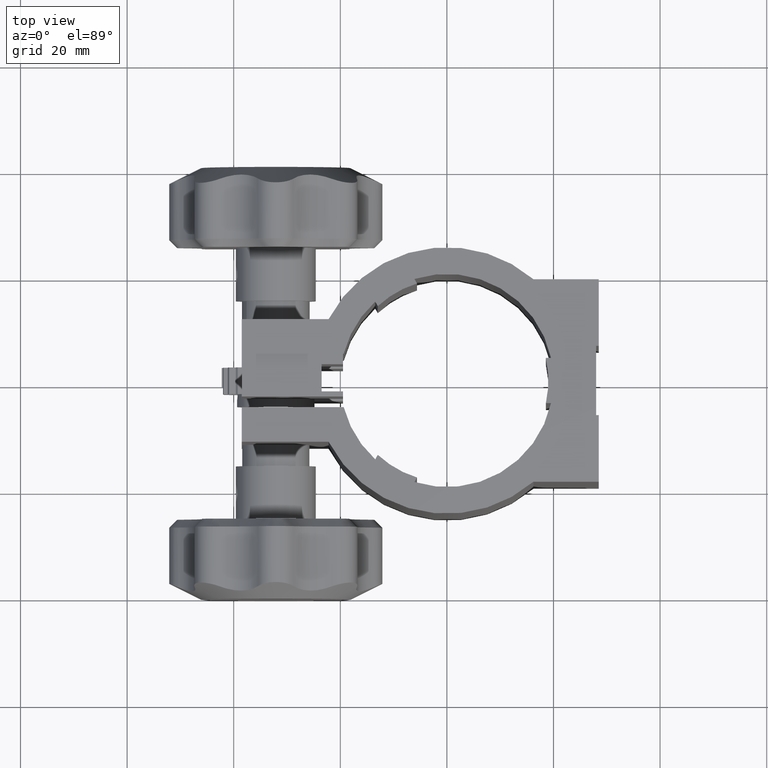
[diagram: clean part render]
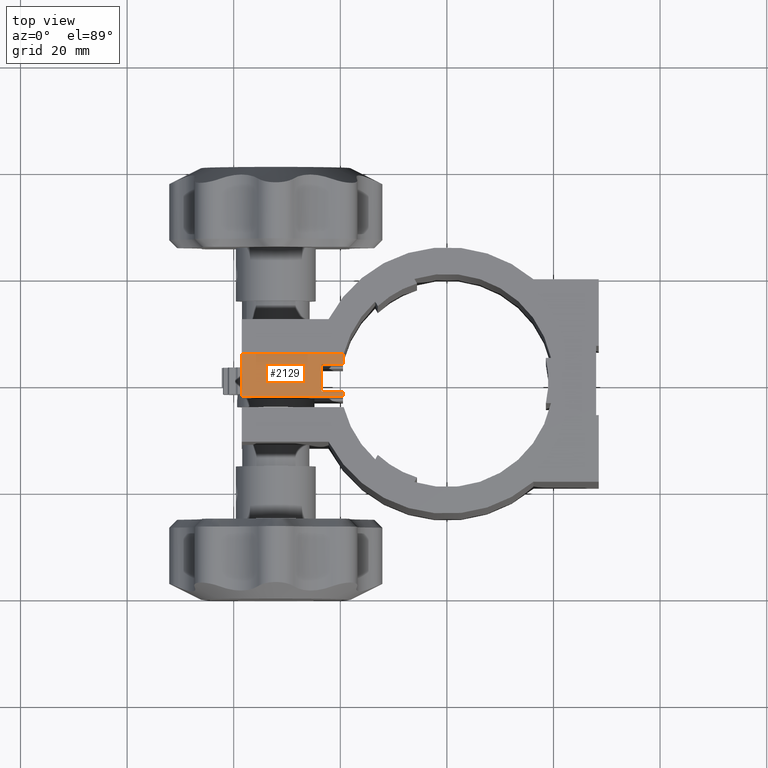
[diagram: same view with one face highlighted and labeled with its STEP entity id]
A machine part, top view. The second image highlights one B-rep face of the part: STEP entity #2129.
In plain terms, the highlighted planar face has unit normal (0, 0, -1).
Its self-contained STEP definition (entity closure, byte-faithful):
#65 = CARTESIAN_POINT ( 'NONE',  ( -19.50000000000001800, 3.049999999999992300, 75.50000000000002800 ) ) ;
#177 = LINE ( 'NONE', #1028, #6519 ) ;
#188 = LINE ( 'NONE', #65, #13181 ) ;
#297 = VERTEX_POINT ( 'NONE', #536 ) ;
#424 = DIRECTION ( 'NONE',  ( 1.000000000000000000, 3.163997855400548500E-017, 6.106226635438360000E-016 ) ) ;
#536 = CARTESIAN_POINT ( 'NONE',  ( -23.50000000000002100, 3.049999999999991800, 75.50000000000002800 ) ) ;
#664 = CARTESIAN_POINT ( 'NONE',  ( -19.50000000000000400, 5.000000000000000000, 75.50000000000002800 ) ) ;
#970 = CARTESIAN_POINT ( 'NONE',  ( -23.50000000000002100, -2.050000000000000700, 75.50000000000002800 ) ) ;
#1028 = CARTESIAN_POINT ( 'NONE',  ( -19.50000000000001800, -2.050000000000000700, 75.50000000000002800 ) ) ;
#1980 = ORIENTED_EDGE ( 'NONE', *, *, #14717, .T. ) ;
#2129 = ADVANCED_FACE ( 'NONE', ( #8971 ), #10787, .F. ) ;
#2461 = DIRECTION ( 'NONE',  ( 3.163997855400551600E-017, -1.000000000000000000, -4.973149783136986500E-017 ) ) ;
#2769 = DIRECTION ( 'NONE',  ( 1.000000000000000000, 3.163997855400549200E-017, 6.106226635438360000E-016 ) ) ;
#3293 = CARTESIAN_POINT ( 'NONE',  ( -19.50000000000001800, -2.050000000000000700, 75.50000000000002800 ) ) ;
#3298 = CARTESIAN_POINT ( 'NONE',  ( -19.50000000000001800, 3.049999999999992300, 75.50000000000002800 ) ) ;
#3508 = VECTOR ( 'NONE', #11261, 1000.000000000000000 ) ;
#3960 = CARTESIAN_POINT ( 'NONE',  ( -38.50000000000001400, 4.999999999999999100, 75.50000000000001400 ) ) ;
#4498 = VECTOR ( 'NONE', #9451, 1000.000000000000000 ) ;
#4936 = CARTESIAN_POINT ( 'NONE',  ( -19.50000000000001800, -2.050000000000000700, 75.50000000000002800 ) ) ;
#5097 = DIRECTION ( 'NONE',  ( -2.017109075713399800E-016, 1.000000000000000000, 4.973149783136976000E-017 ) ) ;
#6326 = CARTESIAN_POINT ( 'NONE',  ( -19.50000000000000400, 5.000000000000000000, 75.50000000000002800 ) ) ;
#6424 = CARTESIAN_POINT ( 'NONE',  ( -19.50000000000001800, -3.000000000000008000, 75.50000000000002800 ) ) ;
#6519 = VECTOR ( 'NONE', #10996, 1000.000000000000000 ) ;
#6719 = ORIENTED_EDGE ( 'NONE', *, *, #9632, .T. ) ;
#6765 = EDGE_CURVE ( 'NONE', #10378, #297, #10055, .T. ) ;
#6953 = ORIENTED_EDGE ( 'NONE', *, *, #8966, .T. ) ;
#7019 = VERTEX_POINT ( 'NONE', #3298 ) ;
#7067 = EDGE_CURVE ( 'NONE', #13239, #7465, #7826, .T. ) ;
#7248 = LINE ( 'NONE', #6326, #3508 ) ;
#7319 = VECTOR ( 'NONE', #2461, 1000.000000000000000 ) ;
#7465 = VERTEX_POINT ( 'NONE', #3960 ) ;
#7695 = LINE ( 'NONE', #13721, #7319 ) ;
#7780 = ORIENTED_EDGE ( 'NONE', *, *, #7067, .T. ) ;
#7826 = LINE ( 'NONE', #664, #4498 ) ;
#7890 = CARTESIAN_POINT ( 'NONE',  ( -19.50000000000000400, 5.000000000000000000, 75.50000000000002800 ) ) ;
#8467 = EDGE_LOOP ( 'NONE', ( #1980, #7780, #11497, #6719, #8571, #6953, #15227, #9520 ) ) ;
#8571 = ORIENTED_EDGE ( 'NONE', *, *, #10871, .T. ) ;
#8758 = DIRECTION ( 'NONE',  ( -3.163997855400551600E-017, 1.000000000000000000, 4.973149783136986500E-017 ) ) ;
#8966 = EDGE_CURVE ( 'NONE', #9031, #10378, #177, .T. ) ;
#8971 = FACE_OUTER_BOUND ( 'NONE', #8467, .T. ) ;
#9031 = VERTEX_POINT ( 'NONE', #4936 ) ;
#9032 = VERTEX_POINT ( 'NONE', #11166 ) ;
#9179 = VECTOR ( 'NONE', #424, 1000.000000000000000 ) ;
#9247 = VECTOR ( 'NONE', #8758, 1000.000000000000000 ) ;
#9451 = DIRECTION ( 'NONE',  ( -1.000000000000000000, -3.163997855400548500E-017, -6.106226635438360000E-016 ) ) ;
#9520 = ORIENTED_EDGE ( 'NONE', *, *, #12051, .T. ) ;
#9632 = EDGE_CURVE ( 'NONE', #9032, #11570, #12530, .T. ) ;
#10055 = LINE ( 'NONE', #13871, #12610 ) ;
#10378 = VERTEX_POINT ( 'NONE', #970 ) ;
#10398 = AXIS2_PLACEMENT_3D ( 'NONE', #3293, #10410, #2769 ) ;
#10410 = DIRECTION ( 'NONE',  ( 6.106226635438360000E-016, 4.973149783137001900E-017, -1.000000000000000000 ) ) ;
#10455 = EDGE_CURVE ( 'NONE', #7465, #9032, #7695, .T. ) ;
#10787 = PLANE ( 'NONE',  #10398 ) ;
#10871 = EDGE_CURVE ( 'NONE', #11570, #9031, #12602, .T. ) ;
#10996 = DIRECTION ( 'NONE',  ( -1.000000000000000000, -3.163997855400548500E-017, -6.106226635438360000E-016 ) ) ;
#11166 = CARTESIAN_POINT ( 'NONE',  ( -38.50000000000002800, -3.000000000000008000, 75.50000000000002800 ) ) ;
#11261 = DIRECTION ( 'NONE',  ( -3.163997855400551600E-017, 1.000000000000000000, 4.973149783136986500E-017 ) ) ;
#11373 = DIRECTION ( 'NONE',  ( 1.000000000000000000, 1.400601958025558400E-016, 6.106226635438361000E-016 ) ) ;
#11497 = ORIENTED_EDGE ( 'NONE', *, *, #10455, .T. ) ;
#11570 = VERTEX_POINT ( 'NONE', #6424 ) ;
#12051 = EDGE_CURVE ( 'NONE', #297, #7019, #188, .T. ) ;
#12530 = LINE ( 'NONE', #12967, #9179 ) ;
#12602 = LINE ( 'NONE', #15021, #9247 ) ;
#12610 = VECTOR ( 'NONE', #5097, 1000.000000000000000 ) ;
#12967 = CARTESIAN_POINT ( 'NONE',  ( -19.50000000000001800, -3.000000000000008000, 75.50000000000002800 ) ) ;
#13181 = VECTOR ( 'NONE', #11373, 1000.000000000000000 ) ;
#13239 = VERTEX_POINT ( 'NONE', #7890 ) ;
#13721 = CARTESIAN_POINT ( 'NONE',  ( -38.50000000000001400, 4.999999999999999100, 75.50000000000001400 ) ) ;
#13871 = CARTESIAN_POINT ( 'NONE',  ( -23.50000000000002100, -2.050000000000000700, 75.50000000000002800 ) ) ;
#14717 = EDGE_CURVE ( 'NONE', #7019, #13239, #7248, .T. ) ;
#15021 = CARTESIAN_POINT ( 'NONE',  ( -19.50000000000001800, -2.050000000000000700, 75.50000000000002800 ) ) ;
#15227 = ORIENTED_EDGE ( 'NONE', *, *, #6765, .T. ) ;